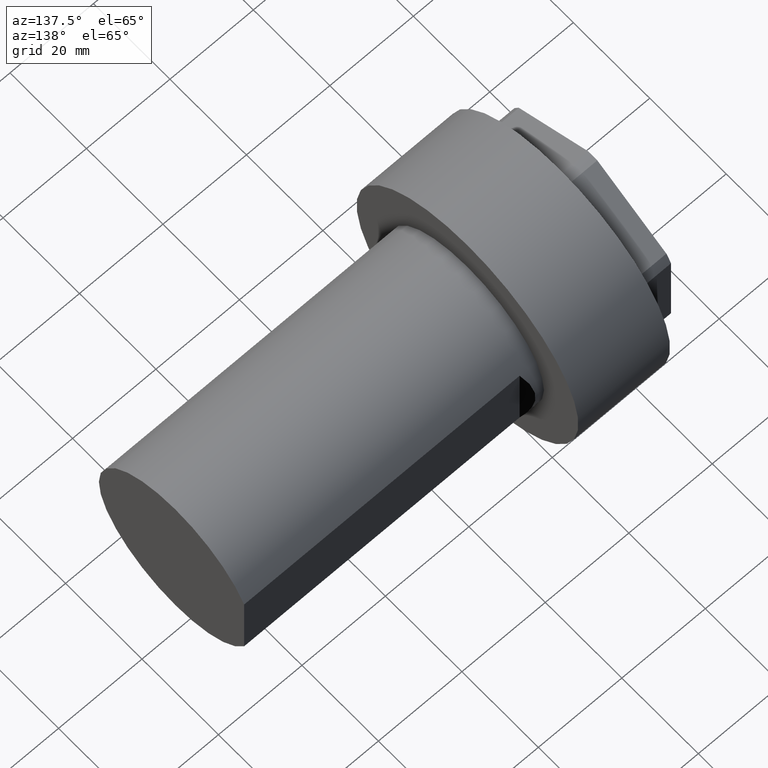
[diagram: clean part render]
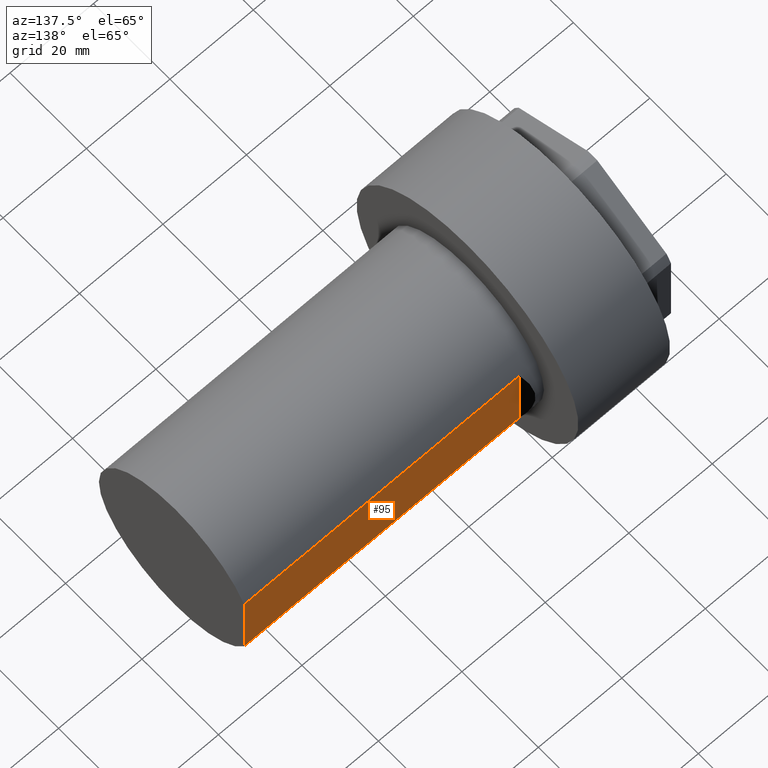
[diagram: same view with one face highlighted and labeled with its STEP entity id]
A machine part, auxiliary view. The second image highlights one B-rep face of the part: STEP entity #95.
In plain terms, the highlighted planar face has unit normal (0, -1, 0).
Its self-contained STEP definition (entity closure, byte-faithful):
#95 = ADVANCED_FACE( '', ( #197 ), #198, .F. );
#197 = FACE_OUTER_BOUND( '', #296, .T. );
#198 = PLANE( '', #297 );
#296 = EDGE_LOOP( '', ( #472, #473, #474, #475 ) );
#297 = AXIS2_PLACEMENT_3D( '', #476, #477, #478 );
#472 = ORIENTED_EDGE( '', *, *, #561, .F. );
#473 = ORIENTED_EDGE( '', *, *, #580, .F. );
#474 = ORIENTED_EDGE( '', *, *, #554, .T. );
#475 = ORIENTED_EDGE( '', *, *, #581, .F. );
#476 = CARTESIAN_POINT( '', ( 92.0000000000000, 18.0000000000000, 35.1985565600989 ) );
#477 = DIRECTION( '', ( 0.000000000000000, -1.00000000000000, 0.000000000000000 ) );
#478 = DIRECTION( '', ( 0.000000000000000, 0.000000000000000, -1.00000000000000 ) );
#554 = EDGE_CURVE( '', #653, #654, #656, .T. );
#561 = EDGE_CURVE( '', #666, #667, #668, .T. );
#580 = EDGE_CURVE( '', #653, #666, #695, .F. );
#581 = EDGE_CURVE( '', #667, #654, #696, .T. );
#653 = VERTEX_POINT( '', #781 );
#654 = VERTEX_POINT( '', #782 );
#656 = LINE( '', #784, #785 );
#666 = VERTEX_POINT( '', #795 );
#667 = VERTEX_POINT( '', #796 );
#668 = LINE( '', #797, #798 );
#695 = LINE( '', #832, #833 );
#696 = LINE( '', #834, #835 );
#781 = CARTESIAN_POINT( '', ( 92.0000000000000, 18.0000000000000, 8.71779788708132 ) );
#782 = CARTESIAN_POINT( '', ( 92.0000000000000, 18.0000000000000, -8.71779788708132 ) );
#784 = CARTESIAN_POINT( '', ( 92.0000000000000, 18.0000000000000, 35.1985565600989 ) );
#785 = VECTOR( '', #913, 1000.00000000000 );
#795 = CARTESIAN_POINT( '', ( 26.0000000000000, 18.0000000000000, 8.71779788708130 ) );
#796 = CARTESIAN_POINT( '', ( 26.0000000000000, 18.0000000000000, -8.71779788708130 ) );
#797 = CARTESIAN_POINT( '', ( 26.0000000000000, 18.0000000000000, 35.1985565600989 ) );
#798 = VECTOR( '', #923, 1000.00000000000 );
#832 = CARTESIAN_POINT( '', ( 38.3031897014172, 18.0000000000000, 8.71779788708132 ) );
#833 = VECTOR( '', #946, 1000.00000000000 );
#834 = CARTESIAN_POINT( '', ( 38.3031897014172, 18.0000000000000, -8.71779788708132 ) );
#835 = VECTOR( '', #947, 1000.00000000000 );
#913 = DIRECTION( '', ( 0.000000000000000, 0.000000000000000, -1.00000000000000 ) );
#923 = DIRECTION( '', ( 0.000000000000000, 0.000000000000000, -1.00000000000000 ) );
#946 = DIRECTION( '', ( 1.00000000000000, 0.000000000000000, 0.000000000000000 ) );
#947 = DIRECTION( '', ( 1.00000000000000, 0.000000000000000, 0.000000000000000 ) );